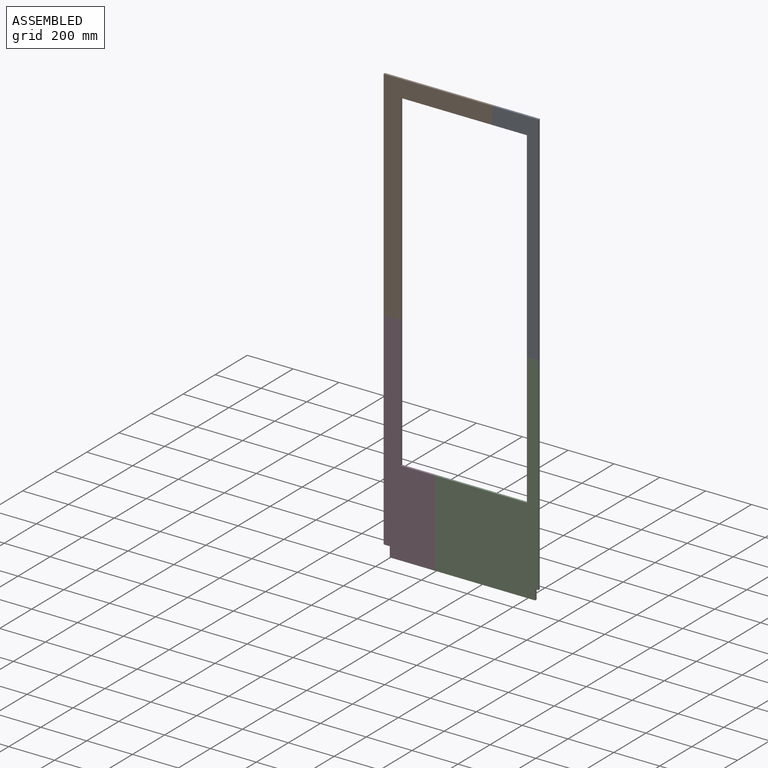
[diagram: assembled view]
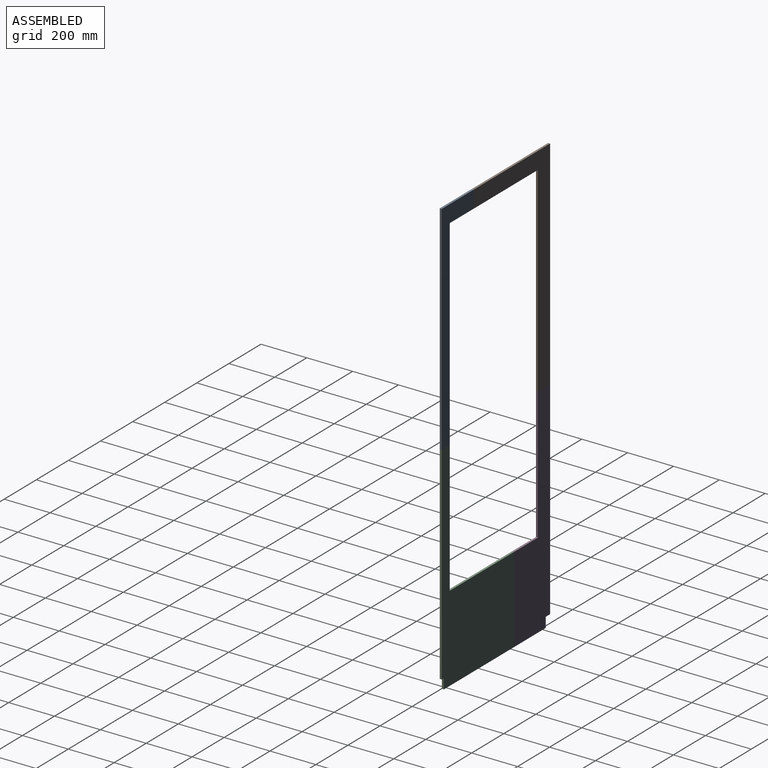
[diagram: assembled view, second angle]
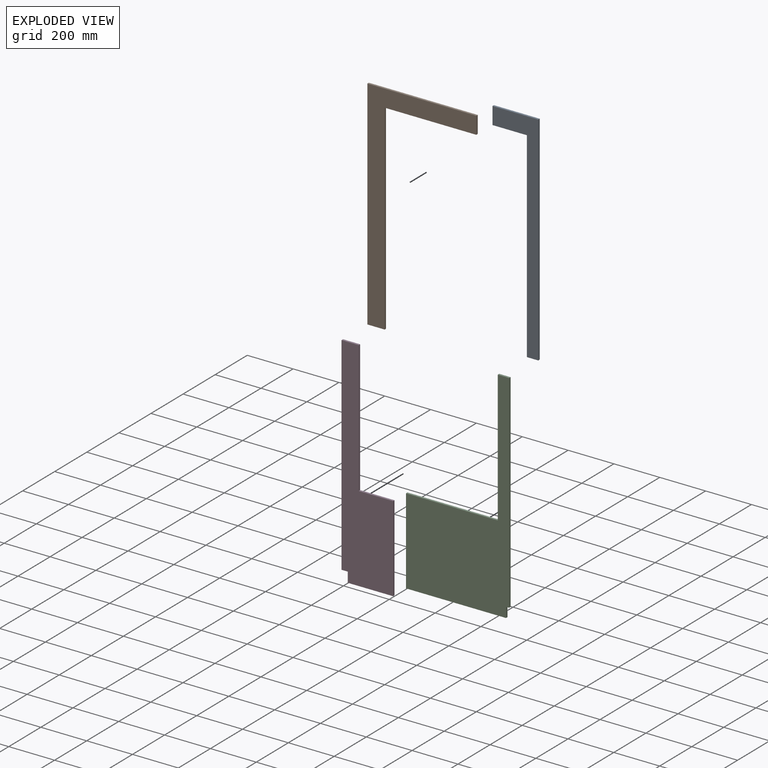
[diagram: exploded view]
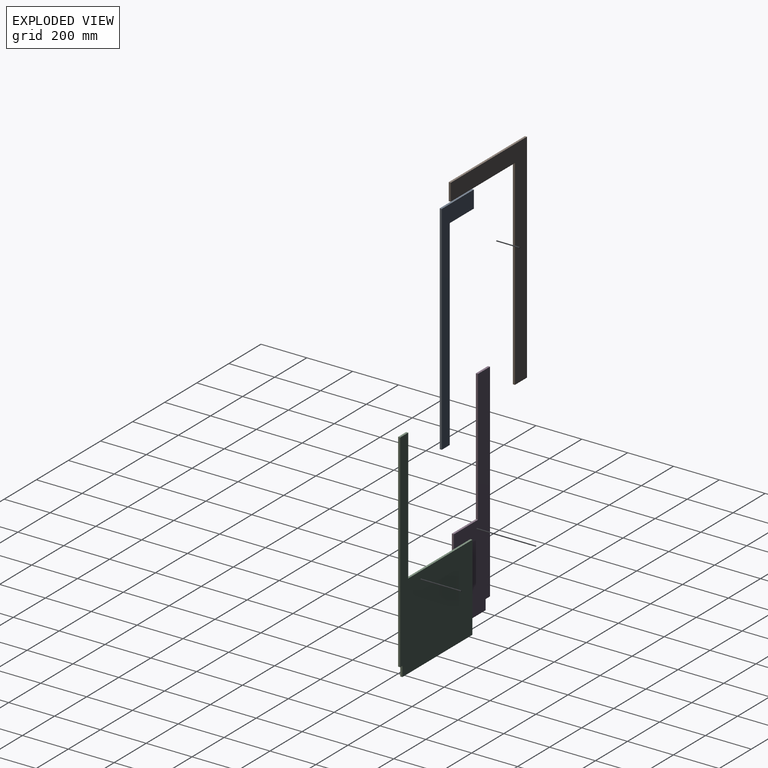
[diagram: exploded view, second angle]
ASSEMBLY  parts=4 mates=3
PART A: 8 faces, bbox 200x9x950 mm
  f0: plane 200x9mm, normal (0,0,1), area 1800mm2, adj f1,f5,f6,f7
  f1: plane 75x9mm, normal (-1,0,0), area 675mm2, adj f0,f2,f6,f7
  f2: plane 150x9mm, normal (0,0,-1), area 1350mm2, adj f1,f3,f6,f7
  f3: plane 875x9mm, normal (-1,0,0), area 7875mm2, adj f2,f4,f6,f7
  f4: plane 50x9mm, normal (0,0,-1), area 450mm2, adj f3,f5,f6,f7
  f5: plane 950x9mm, normal (1,0,0), area 8550mm2, adj f0,f4,f6,f7
  f6: plane 950x200mm, normal (0,-1,0), area 58750mm2, adj f0,f1,f2,f3,f4,f5
  f7: plane 950x200mm, normal (0,1,0), area 58750mm2, adj f0,f1,f2,f3,f4,f5
PART B: 8 faces, bbox 475x9x950 mm
  f0: plane 475x9mm, normal (0,0,1), area 4275mm2, adj f1,f5,f6,f7
  f1: plane 950x9mm, normal (-1,0,0), area 8550mm2, adj f0,f2,f6,f7
  f2: plane 75x9mm, normal (0,0,-1), area 675mm2, adj f1,f3,f6,f7
  f3: plane 875x9mm, normal (1,0,0), area 7875mm2, adj f2,f4,f6,f7
  f4: plane 400x9mm, normal (0,0,-1), area 3600mm2, adj f3,f5,f6,f7
  f5: plane 75x9mm, normal (1,0,0), area 675mm2, adj f0,f4,f6,f7
  f6: plane 950x475mm, normal (0,-1,0), area 101250mm2, adj f0,f1,f2,f3,f4,f5
  f7: plane 950x475mm, normal (0,1,0), area 101250mm2, adj f0,f1,f2,f3,f4,f5
PART C: 10 faces, bbox 450x9x950 mm
  f0: plane 906x9mm, normal (1,0,0), area 8154mm2, adj f1,f7,f8,f9
  f1: plane 50x9mm, normal (0,0,1), area 450mm2, adj f0,f2,f8,f9
  f2: plane 575x9mm, normal (-1,0,0), area 5175mm2, adj f1,f3,f8,f9
  f3: plane 400x9mm, normal (0,0,1), area 3600mm2, adj f2,f4,f8,f9
  f4: plane 375x9mm, normal (-1,0,0), area 3375mm2, adj f3,f5,f8,f9
  f5: plane 436.5x9mm, normal (0,0,-1), area 3928.5mm2, adj f4,f6,f8,f9
  f6: plane 44x9mm, normal (1,0,0), area 396mm2, adj f5,f7,f8,f9
  f7: plane 13.5x9mm, normal (0,0,-1), area 121.5mm2, adj f0,f6,f8,f9
  f8: plane 950x450mm, normal (0,-1,0), area 196906mm2, adj f0,f1,f2,f3,f4,f5,f6,f7
  f9: plane 950x450mm, normal (0,1,0), area 196906mm2, adj f0,f1,f2,f3,f4,f5,f6,f7
PART D: 10 faces, bbox 225x9x950 mm
  f0: plane 198x9mm, normal (0,0,-1), area 1782mm2, adj f1,f7,f8,f9
  f1: plane 375x9mm, normal (1,0,0), area 3375mm2, adj f0,f2,f8,f9
  f2: plane 150x9mm, normal (0,0,1), area 1350mm2, adj f1,f3,f8,f9
  f3: plane 575x9mm, normal (1,0,0), area 5175mm2, adj f2,f4,f8,f9
  f4: plane 75x9mm, normal (0,0,1), area 675mm2, adj f3,f5,f8,f9
  f5: plane 906x9mm, normal (-1,0,0), area 8154mm2, adj f4,f6,f8,f9
  f6: plane 27x9mm, normal (0,0,-1), area 243mm2, adj f5,f7,f8,f9
  f7: plane 44x9mm, normal (-1,0,0), area 396mm2, adj f0,f6,f8,f9
  f8: plane 950x225mm, normal (0,-1,0), area 126312mm2, adj f0,f1,f2,f3,f4,f5,f6,f7
  f9: plane 950x225mm, normal (0,1,0), area 126312mm2, adj f0,f1,f2,f3,f4,f5,f6,f7
PLACE A t=(283.12,-152.17,977.29)mm
PLACE B t=(-191.88,-152.17,977.29)mm
PLACE C t=(483.12,-152.17,27.29)mm
PLACE D t=(33.12,-152.17,-922.71)mm
MATE fastened A.f6 <-> C.f8  axis (0,-1,0) through (458.12,-161.17,27.29)mm
MATE fastened B.f6 <-> A.f6  axis (0,-1,0) through (283.12,-161.17,939.79)mm
MATE fastened D.f8 <-> C.f8  axis (0,-1,0) through (33.12,-161.17,-735.21)mm
